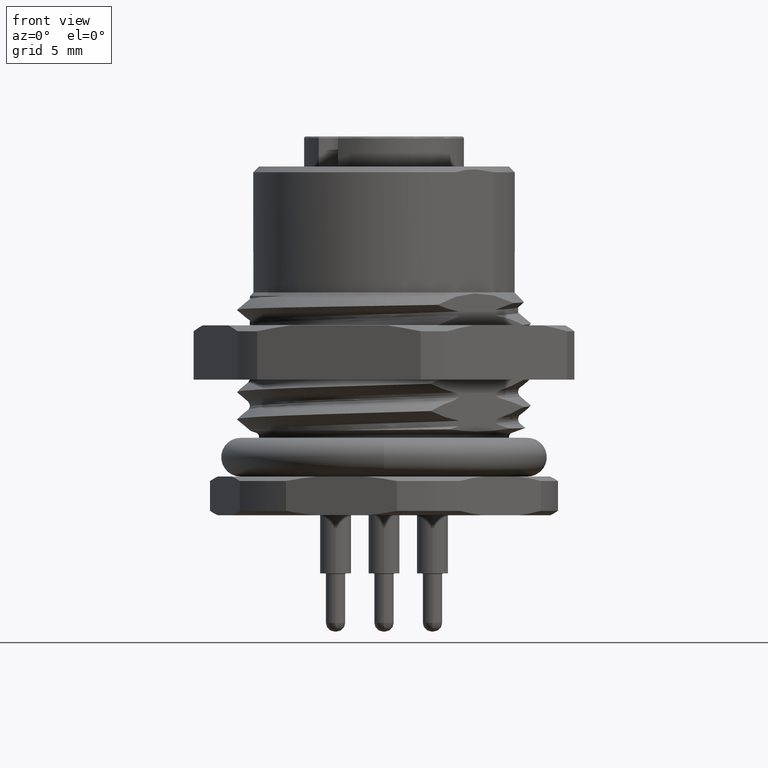
[diagram: clean part render]
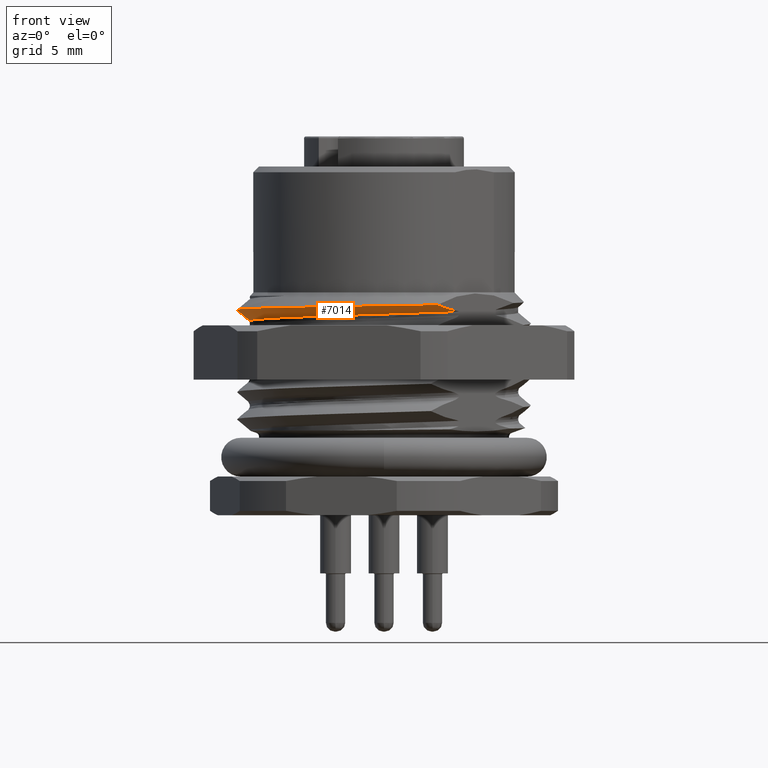
[diagram: same view with one face highlighted and labeled with its STEP entity id]
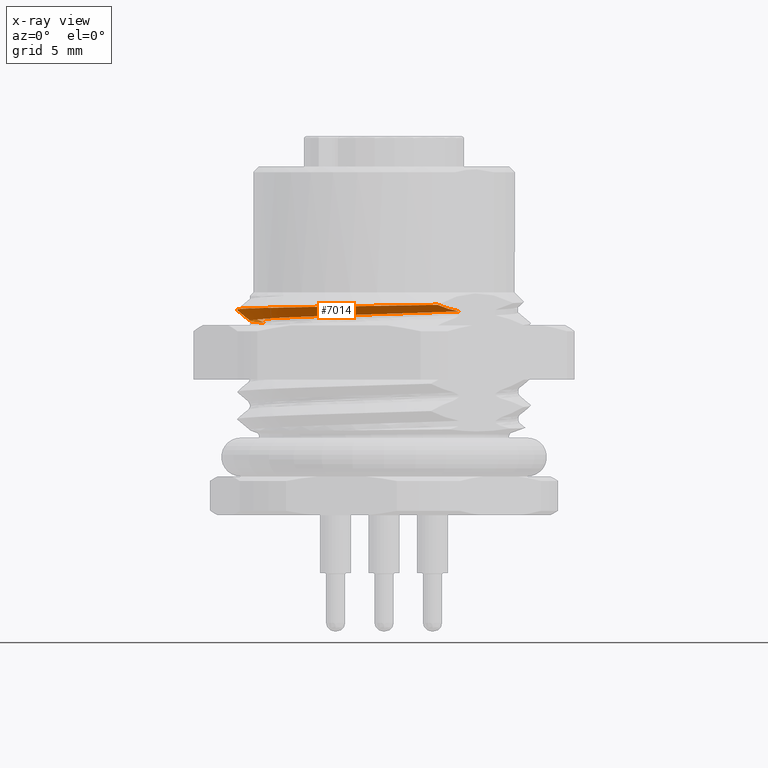
[diagram: x-ray of the same camera — body ghosted, the highlighted face saturated]
A machine part, front view. The second image highlights one B-rep face of the part: STEP entity #7014.
The next image is the same camera in x-ray: the body ghosted, the highlighted face saturated — about 1% of this face is hidden behind the body in this view.
In plain terms, the highlighted face is a freeform B-spline surface patch.
Its self-contained STEP definition (entity closure, byte-faithful):
#252=CARTESIAN_POINT('',(2.759543912717E0,-6.857108311420E0,6.308449621307E0));
#253=CARTESIAN_POINT('',(2.885536744160E0,-6.731115479977E0,6.254819264175E0));
#254=CARTESIAN_POINT('',(3.135268841642E0,-6.481383382495E0,6.157995851679E0));
#255=CARTESIAN_POINT('',(3.501486890905E0,-6.115165333232E0,6.044896385592E0));
#256=CARTESIAN_POINT('',(3.743462354011E0,-5.873189870126E0,5.990109189107E0));
#257=CARTESIAN_POINT('',(3.863630393861E0,-5.753021830276E0,5.968018045543E0));
#326=CARTESIAN_POINT('',(2.759543912717E0,-6.857108311420E0,6.308449621307E0));
#327=CARTESIAN_POINT('',(2.530531342884E0,-6.953693336405E0,6.304347134953E0));
#328=CARTESIAN_POINT('',(2.062512892428E0,-7.123837126254E0,6.296144694729E0));
#329=CARTESIAN_POINT('',(1.337724503222E0,-7.307262355689E0,6.283850591826E0));
#330=CARTESIAN_POINT('',(5.971591628408E-1,-7.417014450480E0,6.271560166424E0));
#331=CARTESIAN_POINT('',(-1.520083647635E-1,-7.451765955749E0,
6.259268424105E0));
#332=CARTESIAN_POINT('',(-9.013686449688E-1,-7.410977893352E0,
6.246988818174E0));
#333=CARTESIAN_POINT('',(-1.643722277454E0,-7.294997181018E0,6.234714861811E0));
#334=CARTESIAN_POINT('',(-2.371960591423E0,-7.104686482192E0,6.222439282426E0));
#335=CARTESIAN_POINT('',(-3.078043891207E0,-6.841951430332E0,6.210172638316E0));
#336=CARTESIAN_POINT('',(-3.754861251371E0,-6.509371453983E0,6.197914076741E0));
#337=CARTESIAN_POINT('',(-4.395859407493E0,-6.109993018539E0,6.185657346782E0));
#338=CARTESIAN_POINT('',(-4.994470626882E0,-5.647617748184E0,6.173401878022E0));
#339=CARTESIAN_POINT('',(-5.544077367861E0,-5.127209360545E0,6.161158123692E0));
#340=CARTESIAN_POINT('',(-6.039434721961E0,-4.553643711060E0,6.148918604650E0));
#341=CARTESIAN_POINT('',(-6.475603051066E0,-3.932239694457E0,6.136677333727E0));
#342=CARTESIAN_POINT('',(-6.847614265237E0,-3.269792461842E0,6.124446901413E0));
#343=CARTESIAN_POINT('',(-7.151816148063E0,-2.572701501133E0,6.112222989552E0));
#344=CARTESIAN_POINT('',(-7.307357137230E0,-2.089261055749E0,6.104074051015E0));
#345=CARTESIAN_POINT('',(-7.372879965349E0,-1.844082703287E0,6.1E0));
#347=CARTESIAN_POINT('',(-7.372879965349E0,-1.844082703287E0,6.1E0));
#348=CARTESIAN_POINT('',(-7.435796615958E0,-1.592533837320E0,6.092343602995E0));
#349=CARTESIAN_POINT('',(-7.535852574008E0,-1.083018596737E0,6.077031640544E0));
#350=CARTESIAN_POINT('',(-7.607062032478E0,-3.075248982922E-1,
6.054067055074E0));
#351=CARTESIAN_POINT('',(-7.598682238277E0,4.711598400547E-1,6.031103237216E0));
#352=CARTESIAN_POINT('',(-7.510800807773E0,1.244939444618E0,6.008138713016E0));
#353=CARTESIAN_POINT('',(-7.399803010162E0,1.752184703739E0,5.992826713965E0));
#354=CARTESIAN_POINT('',(-7.331487274727E0,2.002322236936E0,5.985170289156E0));
#385=CARTESIAN_POINT('',(3.863630393861E0,-5.753021830276E0,5.968018045543E0));
#386=CARTESIAN_POINT('',(3.661248491781E0,-5.888938030686E0,5.960123722474E0));
#387=CARTESIAN_POINT('',(3.242170072196E0,-6.139361134341E0,5.944336750556E0));
#388=CARTESIAN_POINT('',(2.577721224866E0,-6.446602413512E0,5.920664493866E0));
#389=CARTESIAN_POINT('',(1.884581597408E0,-6.682204775755E0,5.896990902784E0));
#390=CARTESIAN_POINT('',(1.170093130711E0,-6.843566815002E0,5.873304495438E0));
#391=CARTESIAN_POINT('',(4.429323220085E-1,-6.928719529149E0,5.849629522877E0));
#392=CARTESIAN_POINT('',(-2.890573622626E-1,-6.936846820060E0,
5.825957578820E0));
#393=CARTESIAN_POINT('',(-1.018049147123E0,-6.867831858953E0,5.802278673696E0));
#394=CARTESIAN_POINT('',(-1.735865699163E0,-6.722368312571E0,5.778594726410E0));
#395=CARTESIAN_POINT('',(-2.434021096999E0,-6.502219140289E0,5.754922539797E0));
#396=CARTESIAN_POINT('',(-3.105141317768E0,-6.209797821255E0,5.731249788140E0));
#397=CARTESIAN_POINT('',(-3.742070457595E0,-5.848114375477E0,5.707564218436E0));
#398=CARTESIAN_POINT('',(-4.337129135711E0,-5.421501561733E0,5.683887493262E0));
#399=CARTESIAN_POINT('',(-4.883852947383E0,-4.934708574176E0,5.660215560855E0));
#400=CARTESIAN_POINT('',(-5.376386772179E0,-4.392948706076E0,5.636538835681E0));
#401=CARTESIAN_POINT('',(-5.809266053483E0,-3.802094094578E0,5.612853265977E0));
#402=CARTESIAN_POINT('',(-6.177299444805E0,-3.169271843530E0,5.589180514320E0));
#403=CARTESIAN_POINT('',(-6.476669979296E0,-2.501241978432E0,5.565508327707E0));
#404=CARTESIAN_POINT('',(-6.704128021169E0,-1.805050133538E0,5.541824380421E0));
#405=CARTESIAN_POINT('',(-6.856941574509E0,-1.088921580018E0,5.518145475297E0));
#406=CARTESIAN_POINT('',(-6.933476437505E0,-3.608986645253E-1,
5.494473531240E0));
#407=CARTESIAN_POINT('',(-6.932943991125E0,3.712307932491E-1,5.470798558679E0));
#408=CARTESIAN_POINT('',(-6.855248269533E0,1.099581568356E0,5.447112151333E0));
#409=CARTESIAN_POINT('',(-6.701342196903E0,1.815307729017E0,5.423438560252E0));
#410=CARTESIAN_POINT('',(-6.472961118562E0,2.510815857941E0,5.399766303561E0));
#411=CARTESIAN_POINT('',(-6.272656031505E0,2.956030777621E0,5.383979331643E0));
#412=CARTESIAN_POINT('',(-6.161043303624E0,3.172766208039E0,5.376085008574E0));
#2206=CARTESIAN_POINT('',(-6.161043303624E0,3.172766208039E0,5.376085008574E0));
#2207=CARTESIAN_POINT('',(-6.286605977018E0,3.047203534644E0,5.426993357346E0));
#2208=CARTESIAN_POINT('',(-6.540643567710E0,2.793165943952E0,5.540188919783E0));
#2209=CARTESIAN_POINT('',(-6.927825895541E0,2.405983616121E0,5.741937840051E0));
#2210=CARTESIAN_POINT('',(-7.195618640061E0,2.138190871602E0,5.900300593196E0));
#2211=CARTESIAN_POINT('',(-7.331487274727E0,2.002322236936E0,5.985170289156E0));
#6239=VERTEX_POINT('',#385);
#6240=VERTEX_POINT('',#412);
#6395=VERTEX_POINT('',#2211);
#6453=VERTEX_POINT('',#326);
#6454=VERTEX_POINT('',#345);
#6960=CARTESIAN_POINT('',(4.237170417511E0,-6.309230290058E0,6.530214798434E0));
#6961=CARTESIAN_POINT('',(3.543747049375E0,-6.774921483309E0,6.505550921893E0));
#6962=CARTESIAN_POINT('',(2.002117032462E0,-7.475483286187E0,6.456223168812E0));
#6963=CARTESIAN_POINT('',(-5.261481592166E-1,-7.721054749916E0,
6.382231539191E0));
#6964=CARTESIAN_POINT('',(-2.997695955480E0,-7.134791186431E0,
6.308239909570E0));
#6965=CARTESIAN_POINT('',(-5.146302484252E0,-5.779882171946E0,
6.234248279949E0));
#6966=CARTESIAN_POINT('',(-6.740478808454E0,-3.802285069304E0,
6.160256650328E0));
#6967=CARTESIAN_POINT('',(-7.608488990778E0,-1.415066646439E0,
6.086265020707E0));
#6968=CARTESIAN_POINT('',(-7.656795260095E0,1.124637416558E0,6.012273391085E0));
#6969=CARTESIAN_POINT('',(-7.139119661206E0,2.736909702190E0,5.962945638005E0));
#6970=CARTESIAN_POINT('',(-6.756699726919E0,3.479512724544E0,5.938281761464E0));
#6971=CARTESIAN_POINT('',(4.112657076294E0,-6.123827470130E0,6.342815880804E0));
#6972=CARTESIAN_POINT('',(3.439610622924E0,-6.575833878317E0,6.318152004263E0));
#6973=CARTESIAN_POINT('',(1.943282891595E0,-7.255808996637E0,6.268824251183E0));
#6974=CARTESIAN_POINT('',(-5.106867878712E-1,-7.494164105949E0,
6.194832621562E0));
#6975=CARTESIAN_POINT('',(-2.909605767314E0,-6.925128462970E0,
6.120840991940E0));
#6976=CARTESIAN_POINT('',(-4.995073420022E0,-5.610034757243E0,
6.046849362319E0));
#6977=CARTESIAN_POINT('',(-6.542403334697E0,-3.690551253671E0,
5.972857732698E0));
#6978=CARTESIAN_POINT('',(-7.384906200259E0,-1.373483547618E0,
5.898866103077E0));
#6979=CARTESIAN_POINT('',(-7.431792943241E0,1.091588860896E0,5.824874473456E0));
#6980=CARTESIAN_POINT('',(-6.929329741337E0,2.656482969713E0,5.775546720375E0));
#6981=CARTESIAN_POINT('',(-6.558147585821E0,3.377263885709E0,5.750882843835E0));
#6982=CARTESIAN_POINT('',(3.988143735077E0,-5.938424650204E0,6.155416963173E0));
#6983=CARTESIAN_POINT('',(3.335474196472E0,-6.376746273325E0,6.130753086633E0));
#6984=CARTESIAN_POINT('',(1.884448750729E0,-7.036134707087E0,6.081425333552E0));
#6985=CARTESIAN_POINT('',(-4.952254165265E-1,-7.267273461982E0,
6.007433703931E0));
#6986=CARTESIAN_POINT('',(-2.821515579149E0,-6.715465739509E0,
5.933442074309E0));
#6987=CARTESIAN_POINT('',(-4.843844355792E0,-5.440187342541E0,
5.859450444688E0));
#6988=CARTESIAN_POINT('',(-6.344327860940E0,-3.578817438038E0,
5.785458815067E0));
#6989=CARTESIAN_POINT('',(-7.161323409741E0,-1.331900448796E0,
5.711467185446E0));
#6990=CARTESIAN_POINT('',(-7.206790626387E0,1.058540305234E0,5.637475555825E0));
#6991=CARTESIAN_POINT('',(-6.719539821468E0,2.576056237237E0,5.588147802744E0));
#6992=CARTESIAN_POINT('',(-6.359595444722E0,3.275015046874E0,5.563483926204E0));
#6993=CARTESIAN_POINT('',(3.863630393861E0,-5.753021830276E0,5.968018045543E0));
#6994=CARTESIAN_POINT('',(3.231337770021E0,-6.177658668333E0,5.943354169003E0));
#6995=CARTESIAN_POINT('',(1.825614609862E0,-6.816460417536E0,5.894026415922E0));
#6996=CARTESIAN_POINT('',(-4.797640451811E-1,-7.040382818015E0,
5.820034786301E0));
#6997=CARTESIAN_POINT('',(-2.733425390984E0,-6.505803016048E0,
5.746043156680E0));
#6998=CARTESIAN_POINT('',(-4.692615291562E0,-5.270339927839E0,
5.672051527059E0));
#6999=CARTESIAN_POINT('',(-6.146252387183E0,-3.467083622405E0,
5.598059897437E0));
#7000=CARTESIAN_POINT('',(-6.937740619222E0,-1.290317349976E0,
5.524068267816E0));
#7001=CARTESIAN_POINT('',(-6.981788309534E0,1.025491749572E0,5.450076638195E0));
#7002=CARTESIAN_POINT('',(-6.509749901599E0,2.495629504760E0,5.400748885114E0));
#7003=CARTESIAN_POINT('',(-6.161043303624E0,3.172766208039E0,5.376085008574E0));
#7004=B_SPLINE_SURFACE_WITH_KNOTS('',3,3,((#6960,#6961,#6962,#6963,#6964,#6965,
#6966,#6967,#6968,#6969,#6970),(#6971,#6972,#6973,#6974,#6975,#6976,#6977,#6978,
#6979,#6980,#6981),(#6982,#6983,#6984,#6985,#6986,#6987,#6988,#6989,#6990,#6991,
#6992),(#6993,#6994,#6995,#6996,#6997,#6998,#6999,#7000,#7001,#7002,#7003)),
.UNSPECIFIED.,.F.,.F.,.F.,(4,4),(4,1,1,1,1,1,1,1,4),(-7.315721894127E-13,1.E0),(
6.735225182671E-1,6.868303653213E-1,7.001382123754E-1,7.134460594296E-1,
7.267539064838E-1,7.400617535379E-1,7.533696005921E-1,7.666774476463E-1,
7.799852947004E-1),.UNSPECIFIED.);
#7005=ORIENTED_EDGE('',*,*,#6847,.F.);
#7006=ORIENTED_EDGE('',*,*,#6810,.T.);
#7008=ORIENTED_EDGE('',*,*,#7007,.T.);
#7010=ORIENTED_EDGE('',*,*,#7009,.T.);
#7011=ORIENTED_EDGE('',*,*,#6940,.F.);
#7012=EDGE_LOOP('',(#7005,#7006,#7008,#7010,#7011));
#7013=FACE_OUTER_BOUND('',#7012,.F.);
#258=B_SPLINE_CURVE_WITH_KNOTS('',3,(#252,#253,#254,#255,#256,#257),
.UNSPECIFIED.,.F.,.F.,(4,1,1,4),(0.E0,3.333333333333E-1,6.666666666667E-1,1.E0),
.UNSPECIFIED.);
#346=B_SPLINE_CURVE_WITH_KNOTS('',3,(#326,#327,#328,#329,#330,#331,#332,#333,
#334,#335,#336,#337,#338,#339,#340,#341,#342,#343,#344,#345),.UNSPECIFIED.,.F.,
.F.,(4,1,1,1,1,1,1,1,1,1,1,1,1,1,1,1,1,4),(0.E0,5.882352941176E-2,
1.176470588235E-1,1.764705882353E-1,2.352941176471E-1,2.941176470588E-1,
3.529411764706E-1,4.117647058824E-1,4.705882352941E-1,5.294117647059E-1,
5.882352941176E-1,6.470588235294E-1,7.058823529412E-1,7.647058823529E-1,
8.235294117647E-1,8.823529411765E-1,9.411764705882E-1,1.E0),.UNSPECIFIED.);
#355=B_SPLINE_CURVE_WITH_KNOTS('',3,(#347,#348,#349,#350,#351,#352,#353,#354),
.UNSPECIFIED.,.F.,.F.,(4,1,1,1,1,4),(0.E0,2.E-1,4.E-1,6.E-1,8.E-1,1.E0),
.UNSPECIFIED.);
#413=B_SPLINE_CURVE_WITH_KNOTS('',3,(#385,#386,#387,#388,#389,#390,#391,#392,
#393,#394,#395,#396,#397,#398,#399,#400,#401,#402,#403,#404,#405,#406,#407,#408,
#409,#410,#411,#412),.UNSPECIFIED.,.F.,.F.,(4,1,1,1,1,1,1,1,1,1,1,1,1,1,1,1,1,1,
1,1,1,1,1,1,1,4),(0.E0,4.E-2,8.E-2,1.2E-1,1.6E-1,2.E-1,2.4E-1,2.8E-1,3.2E-1,
3.6E-1,4.E-1,4.4E-1,4.8E-1,5.2E-1,5.6E-1,6.E-1,6.4E-1,6.8E-1,7.2E-1,7.6E-1,
8.E-1,8.4E-1,8.8E-1,9.2E-1,9.6E-1,1.E0),.UNSPECIFIED.);
#2212=B_SPLINE_CURVE_WITH_KNOTS('',3,(#2206,#2207,#2208,#2209,#2210,#2211),
.UNSPECIFIED.,.F.,.F.,(4,1,1,4),(0.E0,3.333333333333E-1,6.666666666667E-1,1.E0),
.UNSPECIFIED.);
#6810=EDGE_CURVE('',#6453,#6239,#258,.T.);
#6847=EDGE_CURVE('',#6453,#6454,#346,.T.);
#6940=EDGE_CURVE('',#6454,#6395,#355,.T.);
#7007=EDGE_CURVE('',#6239,#6240,#413,.T.);
#7009=EDGE_CURVE('',#6240,#6395,#2212,.T.);
#7014=ADVANCED_FACE('',(#7013),#7004,.F.);